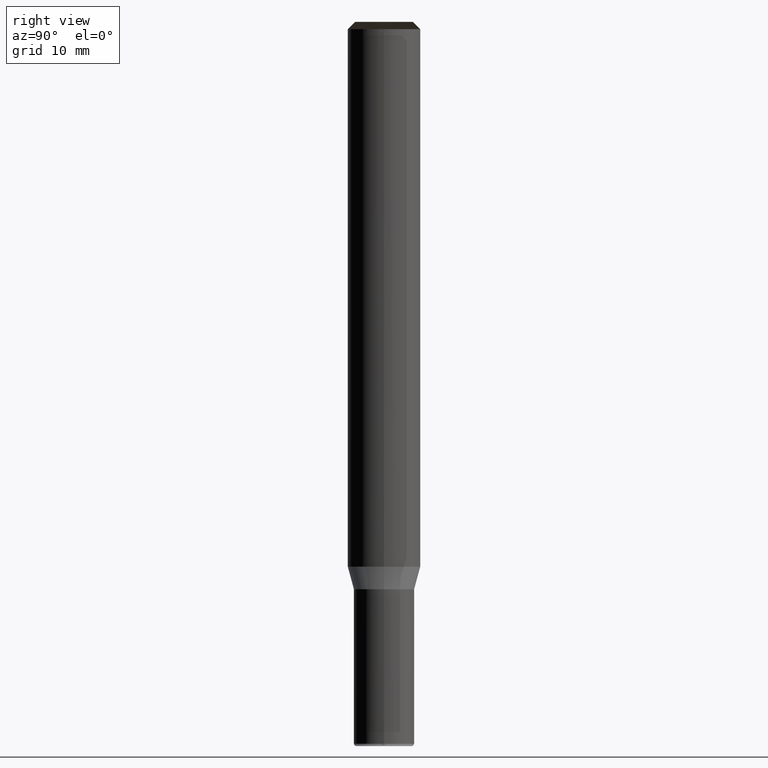
[diagram: clean part render]
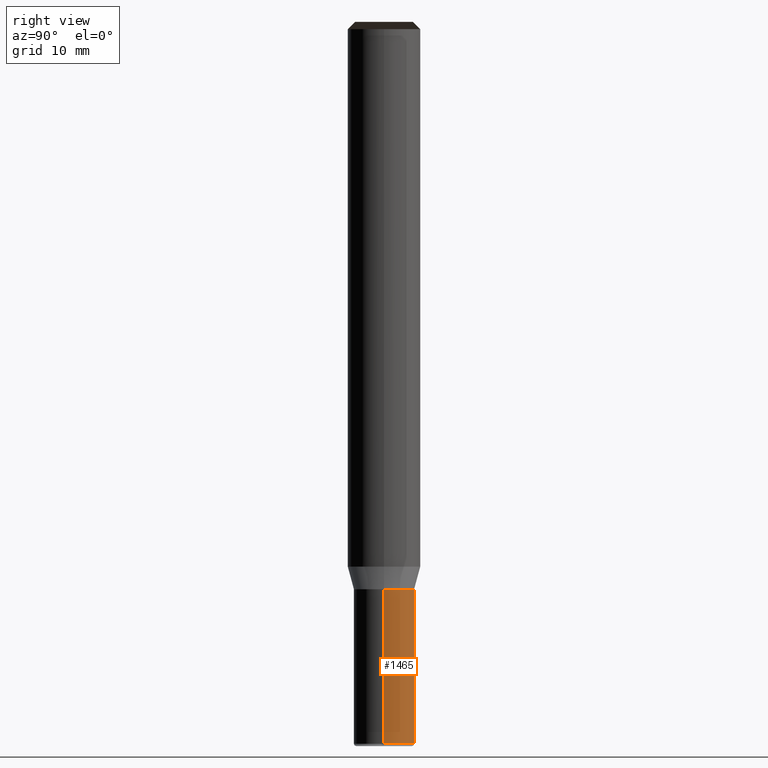
[diagram: same view with one face highlighted and labeled with its STEP entity id]
A machine part, right view. The second image highlights one B-rep face of the part: STEP entity #1465.
In plain terms, the highlighted face is a freeform B-spline surface patch.
Its self-contained STEP definition (entity closure, byte-faithful):
#1347=CARTESIAN_POINT('',(2.5,0.0,-14.666025403784));
#1348=CARTESIAN_POINT('',(2.5,2.5,-14.666025403784));
#1349=CARTESIAN_POINT('',(0.0,2.5,-14.666025403784));
#1350=CARTESIAN_POINT('',(-2.5,2.5,-14.666025403784));
#1351=CARTESIAN_POINT('',(-2.5,0.0,-14.666025403784));
#1352=CARTESIAN_POINT('',(2.5,0.0,-1.866025403784));
#1353=CARTESIAN_POINT('',(2.5,2.5,-1.866025403784));
#1354=CARTESIAN_POINT('',(0.0,2.5,-1.866025403784));
#1355=CARTESIAN_POINT('',(-2.5,2.5,-1.866025403784));
#1356=CARTESIAN_POINT('',(-2.5,0.0,-1.866025403784));
#1446=(
BOUNDED_SURFACE()
B_SPLINE_SURFACE(1,2,(
(#1347,#1348,#1349,#1350,#1351),
(#1352,#1353,#1354,#1355,#1356)
), .UNSPECIFIED.,.F.,.F.,.F.)
B_SPLINE_SURFACE_WITH_KNOTS((2,2),(3,2,3),(
0.0,1.0),(
0.0,0.5,1.0), .UNSPECIFIED.)
GEOMETRIC_REPRESENTATION_ITEM()
RATIONAL_B_SPLINE_SURFACE(((1.0,0.707106781187,1.0,0.707106781187,1.0),
(1.0,0.707106781187,1.0,0.707106781187,1.0)
))
REPRESENTATION_ITEM('')
SURFACE()
);
#1447=(
BOUNDED_CURVE()
B_SPLINE_CURVE(2,(#1352,#1353,#1354,#1355,#1356),.UNSPECIFIED.,.F.,.F.)
B_SPLINE_CURVE_WITH_KNOTS((3,2,3),
(0.0,0.5,1.0),.UNSPECIFIED.)
CURVE()
GEOMETRIC_REPRESENTATION_ITEM()
RATIONAL_B_SPLINE_CURVE((1.0,0.707106781187,1.0,0.707106781187,1.0))
REPRESENTATION_ITEM('')
);
#1448=(
BOUNDED_CURVE()
B_SPLINE_CURVE(1,(#1356,#1351),.UNSPECIFIED.,.F.,.F.)
B_SPLINE_CURVE_WITH_KNOTS((2,2),
(0.0,1.0),.UNSPECIFIED.)
CURVE()
GEOMETRIC_REPRESENTATION_ITEM()
RATIONAL_B_SPLINE_CURVE((1.0,1.0))
REPRESENTATION_ITEM('')
);
#1449=(
BOUNDED_CURVE()
B_SPLINE_CURVE(2,(#1351,#1350,#1349,#1348,#1347),.UNSPECIFIED.,.F.,.F.)
B_SPLINE_CURVE_WITH_KNOTS((3,2,3),
(0.0,0.5,1.0),.UNSPECIFIED.)
CURVE()
GEOMETRIC_REPRESENTATION_ITEM()
RATIONAL_B_SPLINE_CURVE((1.0,0.707106781187,1.0,0.707106781187,1.0))
REPRESENTATION_ITEM('')
);
#1450=(
BOUNDED_CURVE()
B_SPLINE_CURVE(1,(#1347,#1352),.UNSPECIFIED.,.F.,.F.)
B_SPLINE_CURVE_WITH_KNOTS((2,2),
(0.0,1.0),.UNSPECIFIED.)
CURVE()
GEOMETRIC_REPRESENTATION_ITEM()
RATIONAL_B_SPLINE_CURVE((1.0,1.0))
REPRESENTATION_ITEM('')
);
#1451=VERTEX_POINT('',#1347);
#1452=VERTEX_POINT('',#1351);
#1453=VERTEX_POINT('',#1352);
#1454=VERTEX_POINT('',#1356);
#1455=EDGE_CURVE('',#1453,#1454,#1447,.T.);
#1456=EDGE_CURVE('',#1454,#1452,#1448,.T.);
#1457=EDGE_CURVE('',#1452,#1451,#1449,.T.);
#1458=EDGE_CURVE('',#1451,#1453,#1450,.T.);
#1459=ORIENTED_EDGE('',*,*,#1455,.T.);
#1460=ORIENTED_EDGE('',*,*,#1456,.T.);
#1461=ORIENTED_EDGE('',*,*,#1457,.T.);
#1462=ORIENTED_EDGE('',*,*,#1458,.T.);
#1463=EDGE_LOOP('',(#1459,#1460,#1461,#1462));
#1464=FACE_OUTER_BOUND('',#1463,.T.);
#1465=ADVANCED_FACE('',(#1464),#1446,.T.);